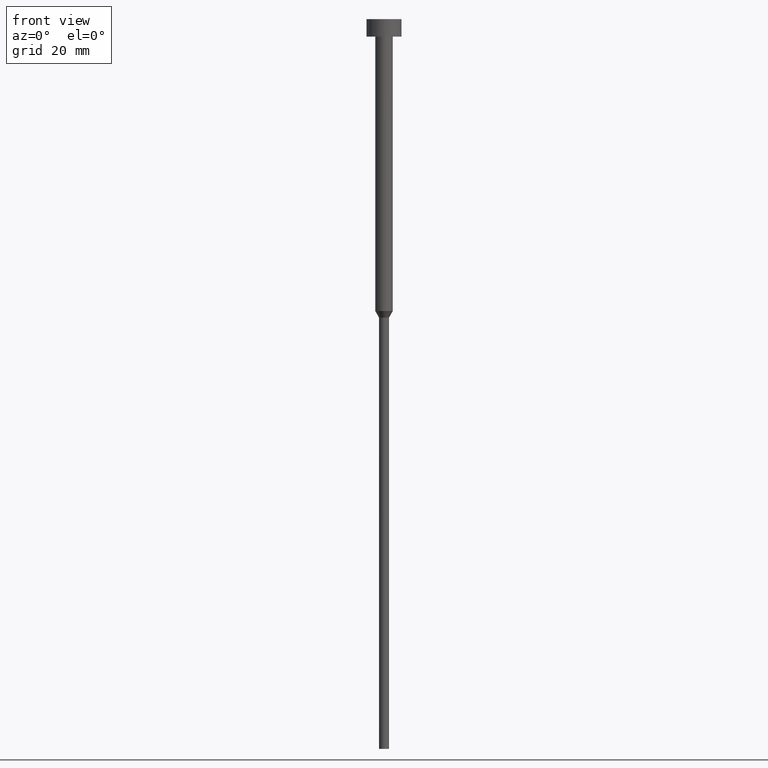
[diagram: clean part render]
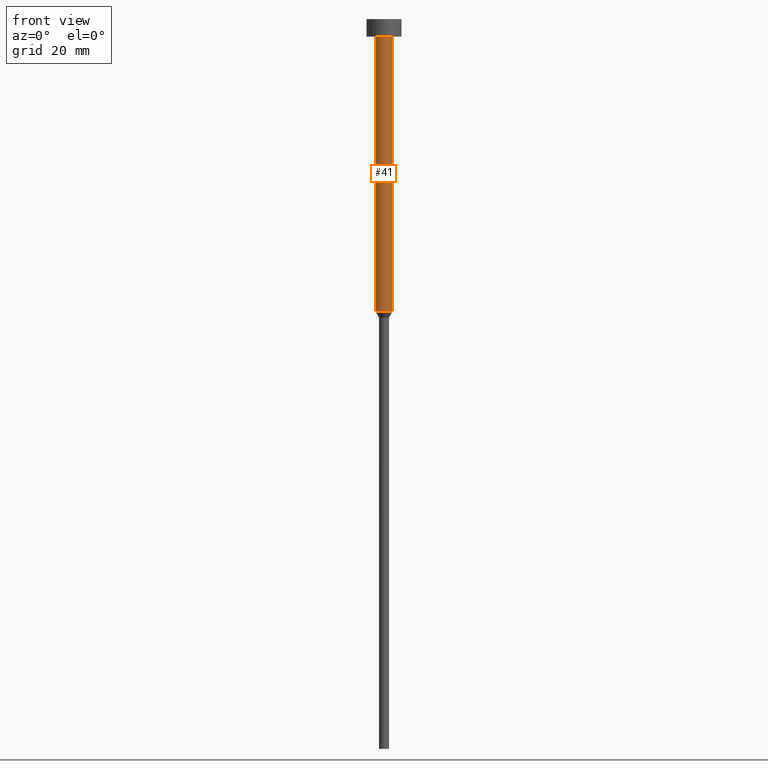
[diagram: same view with one face highlighted and labeled with its STEP entity id]
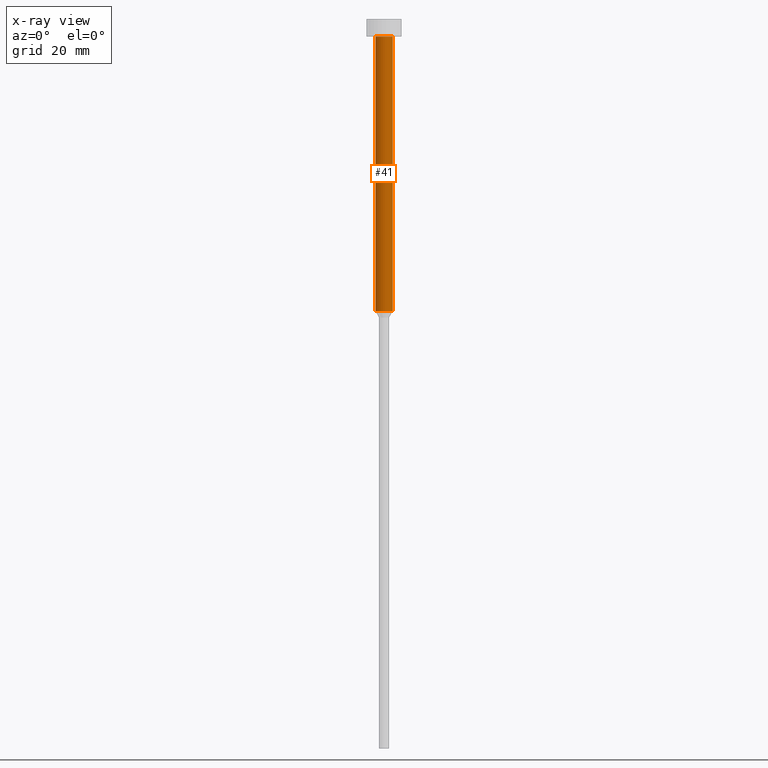
[diagram: x-ray of the same camera — body ghosted, the highlighted face saturated]
A machine part, front view. The second image highlights one B-rep face of the part: STEP entity #41.
The next image is the same camera in x-ray: the body ghosted, the highlighted face saturated — about 0% of this face is hidden behind the body in this view.
In plain terms, the highlighted cylindrical surface (edge-blend (fillet) strip) has radius 1.5 mm, axis along (-0, -0, 1).
Its self-contained STEP definition (entity closure, byte-faithful):
#14 = ORIENTED_EDGE ( 'NONE', *, *, #345, .T. ) ;
#16 = VERTEX_POINT ( 'NONE', #311 ) ;
#29 = CARTESIAN_POINT ( 'NONE',  ( 0.000000000000000000, 0.000000000000000000, -50.00000000000000000 ) ) ;
#37 = ORIENTED_EDGE ( 'NONE', *, *, #79, .F. ) ;
#41 = ADVANCED_FACE ( 'NONE', ( #53 ), #213, .T. ) ;
#53 = FACE_OUTER_BOUND ( 'NONE', #201, .T. ) ;
#59 = CARTESIAN_POINT ( 'NONE',  ( -1.500000000000000000, 1.836970198721029934E-16, -3.000000000000000888 ) ) ;
#77 = LINE ( 'NONE', #294, #274 ) ;
#79 = EDGE_CURVE ( 'NONE', #16, #313, #77, .T. ) ;
#92 = CARTESIAN_POINT ( 'NONE',  ( 1.500000000000000000, 0.000000000000000000, -3.000000000000000888 ) ) ;
#105 = DIRECTION ( 'NONE',  ( -0.000000000000000000, -0.000000000000000000, 1.000000000000000000 ) ) ;
#117 = CARTESIAN_POINT ( 'NONE',  ( 1.500000000000000000, 0.000000000000000000, -50.00000000000000000 ) ) ;
#129 = CIRCLE ( 'NONE', #195, 1.500000000000000000 ) ;
#135 = CARTESIAN_POINT ( 'NONE',  ( 0.000000000000000000, 0.000000000000000000, 0.000000000000000000 ) ) ;
#138 = DIRECTION ( 'NONE',  ( 1.000000000000000000, 0.000000000000000000, 0.000000000000000000 ) ) ;
#141 = AXIS2_PLACEMENT_3D ( 'NONE', #29, #192, #138 ) ;
#169 = DIRECTION ( 'NONE',  ( -0.000000000000000000, -0.000000000000000000, 1.000000000000000000 ) ) ;
#189 = VECTOR ( 'NONE', #169, 1000.000000000000000 ) ;
#192 = DIRECTION ( 'NONE',  ( -0.000000000000000000, -0.000000000000000000, 1.000000000000000000 ) ) ;
#195 = AXIS2_PLACEMENT_3D ( 'NONE', #305, #325, #327 ) ;
#197 = VERTEX_POINT ( 'NONE', #117 ) ;
#201 = EDGE_LOOP ( 'NONE', ( #37, #14, #289, #309 ) ) ;
#213 = CYLINDRICAL_SURFACE ( 'NONE', #218, 1.500000000000000000 ) ;
#216 = LINE ( 'NONE', #275, #189 ) ;
#218 = AXIS2_PLACEMENT_3D ( 'NONE', #135, #105, #317 ) ;
#255 = CIRCLE ( 'NONE', #141, 1.500000000000000000 ) ;
#274 = VECTOR ( 'NONE', #350, 1000.000000000000000 ) ;
#275 = CARTESIAN_POINT ( 'NONE',  ( 1.500000000000000000, 0.000000000000000000, 0.000000000000000000 ) ) ;
#289 = ORIENTED_EDGE ( 'NONE', *, *, #303, .T. ) ;
#294 = CARTESIAN_POINT ( 'NONE',  ( -1.500000000000000000, 1.836970198721029934E-16, 0.000000000000000000 ) ) ;
#303 = EDGE_CURVE ( 'NONE', #197, #332, #216, .T. ) ;
#305 = CARTESIAN_POINT ( 'NONE',  ( 0.000000000000000000, 0.000000000000000000, -3.000000000000000888 ) ) ;
#309 = ORIENTED_EDGE ( 'NONE', *, *, #355, .F. ) ;
#311 = CARTESIAN_POINT ( 'NONE',  ( -1.500000000000000000, 1.836970198721029934E-16, -50.00000000000000000 ) ) ;
#313 = VERTEX_POINT ( 'NONE', #59 ) ;
#317 = DIRECTION ( 'NONE',  ( 1.000000000000000000, 0.000000000000000000, 0.000000000000000000 ) ) ;
#325 = DIRECTION ( 'NONE',  ( -0.000000000000000000, -0.000000000000000000, 1.000000000000000000 ) ) ;
#327 = DIRECTION ( 'NONE',  ( 1.000000000000000000, 0.000000000000000000, 0.000000000000000000 ) ) ;
#332 = VERTEX_POINT ( 'NONE', #92 ) ;
#345 = EDGE_CURVE ( 'NONE', #16, #197, #255, .T. ) ;
#350 = DIRECTION ( 'NONE',  ( -0.000000000000000000, -0.000000000000000000, 1.000000000000000000 ) ) ;
#355 = EDGE_CURVE ( 'NONE', #313, #332, #129, .T. ) ;